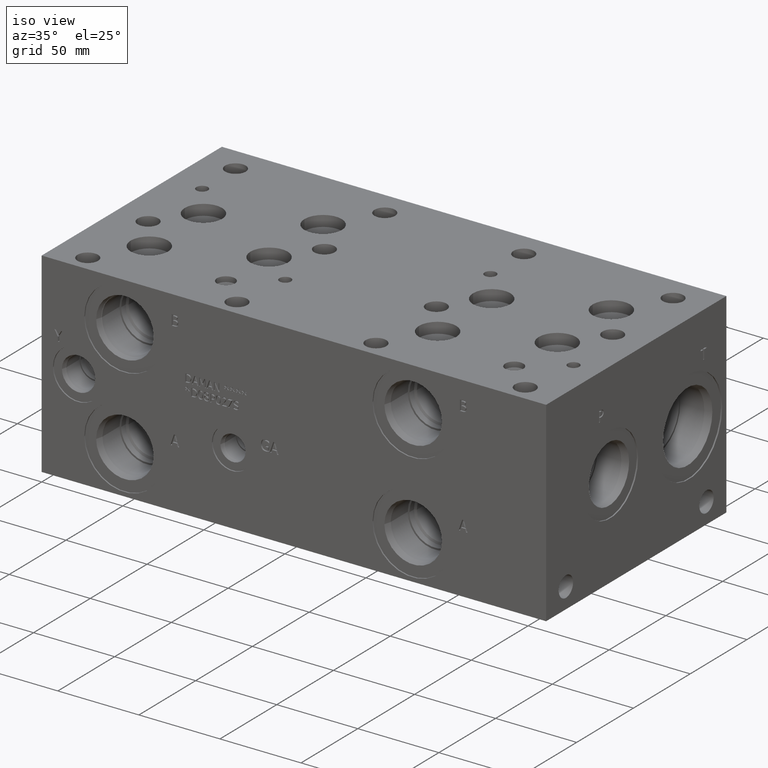
[diagram: clean part render]
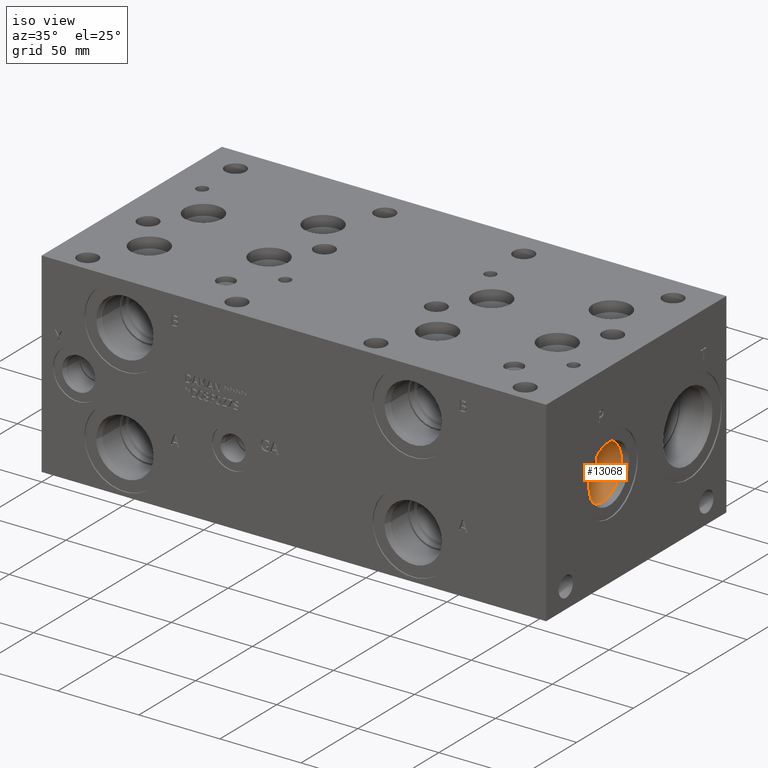
[diagram: same view with one face highlighted and labeled with its STEP entity id]
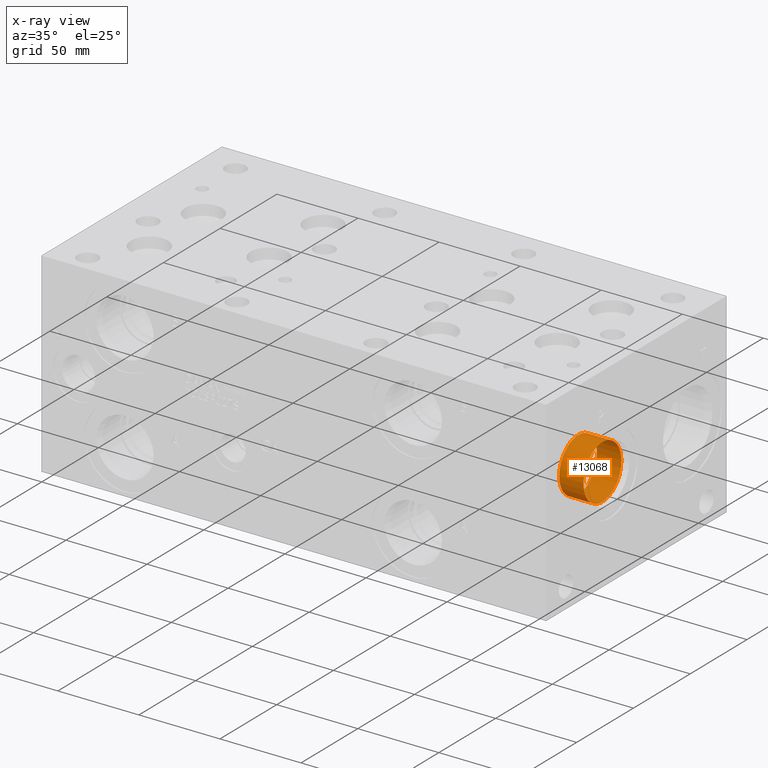
[diagram: x-ray of the same camera — body ghosted, the highlighted face saturated]
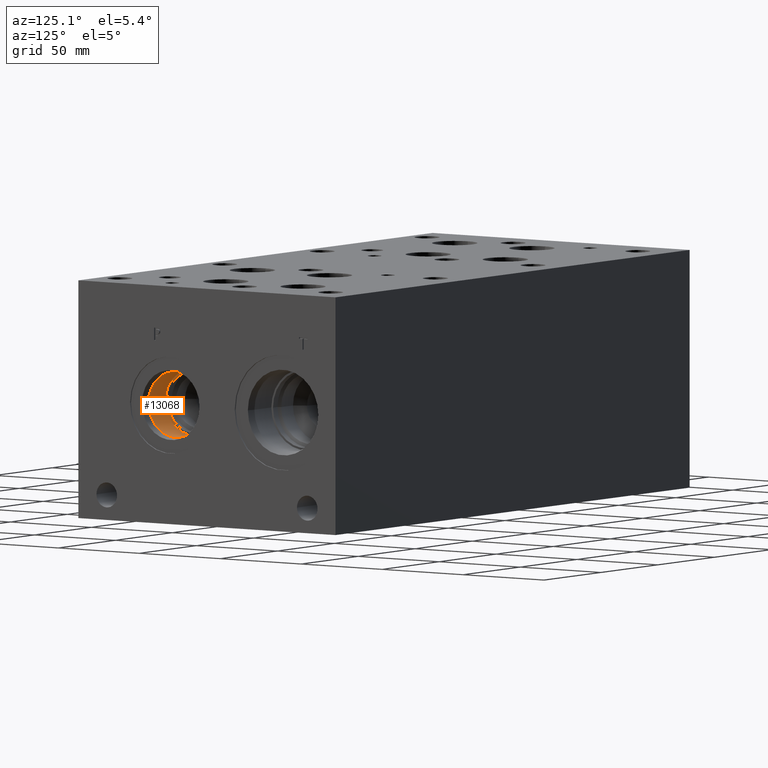
[diagram: same view with one face highlighted and labeled with its STEP entity id]
A machine part, iso view. The second image highlights one B-rep face of the part: STEP entity #13068.
The next image is the same camera in x-ray: the body ghosted, the highlighted face saturated — about 0% of this face is hidden behind the body in this view.
A second angle (auxiliary view) of the same face is appended — the face is thin or edge-on in the first view.
In plain terms, the highlighted cylindrical surface (bore or boss wall) has radius 16.6751 mm, axis along (1, 0, 0).
Its self-contained STEP definition (entity closure, byte-faithful):
#19=CYLINDRICAL_SURFACE('',#13671,16.6751);
#236=CIRCLE('',#13668,16.6751);
#237=CIRCLE('',#13669,16.6751);
#239=CIRCLE('',#13672,16.6751);
#1531=FACE_OUTER_BOUND('',#2289,.T.);
#2289=EDGE_LOOP('',(#10934,#10935,#10936,#10937,#10938));
#3552=LINE('',#21907,#4719);
#4719=VECTOR('',#15962,16.6751);
#6102=VERTEX_POINT('',#21898);
#6103=VERTEX_POINT('',#21899);
#6105=VERTEX_POINT('',#21905);
#7806=EDGE_CURVE('',#6102,#6103,#236,.T.);
#7807=EDGE_CURVE('',#6103,#6102,#237,.T.);
#7809=EDGE_CURVE('',#6105,#6105,#239,.T.);
#7810=EDGE_CURVE('',#6105,#6103,#3552,.T.);
#10934=ORIENTED_EDGE('',*,*,#7809,.F.);
#10935=ORIENTED_EDGE('',*,*,#7810,.T.);
#10936=ORIENTED_EDGE('',*,*,#7806,.F.);
#10937=ORIENTED_EDGE('',*,*,#7807,.F.);
#10938=ORIENTED_EDGE('',*,*,#7810,.F.);
#13068=ADVANCED_FACE('',(#1531),#19,.F.);
#13668=AXIS2_PLACEMENT_3D('',#21900,#15952,#15953);
#13669=AXIS2_PLACEMENT_3D('',#21901,#15954,#15955);
#13671=AXIS2_PLACEMENT_3D('',#21904,#15958,#15959);
#13672=AXIS2_PLACEMENT_3D('',#21906,#15960,#15961);
#15952=DIRECTION('center_axis',(1.,0.,0.));
#15953=DIRECTION('ref_axis',(0.,1.,0.));
#15954=DIRECTION('center_axis',(1.,0.,0.));
#15955=DIRECTION('ref_axis',(0.,1.,0.));
#15958=DIRECTION('center_axis',(1.,0.,0.));
#15959=DIRECTION('ref_axis',(0.,1.,0.));
#15960=DIRECTION('center_axis',(-1.,0.,0.));
#15961=DIRECTION('ref_axis',(0.,1.,0.));
#15962=DIRECTION('',(-1.,0.,0.));
#21898=CARTESIAN_POINT('',(291.3126,73.1647,60.325));
#21899=CARTESIAN_POINT('',(291.3126,39.8145,60.325));
#21900=CARTESIAN_POINT('Origin',(291.3126,56.4896,60.325));
#21901=CARTESIAN_POINT('Origin',(291.3126,56.4896,60.325));
#21904=CARTESIAN_POINT('Origin',(301.2313,56.4896,60.325));
#21905=CARTESIAN_POINT('',(306.326321153229,39.8145,60.325));
#21906=CARTESIAN_POINT('Origin',(306.326321153229,56.4896,60.325));
#21907=CARTESIAN_POINT('',(301.2313,39.8145,60.325));